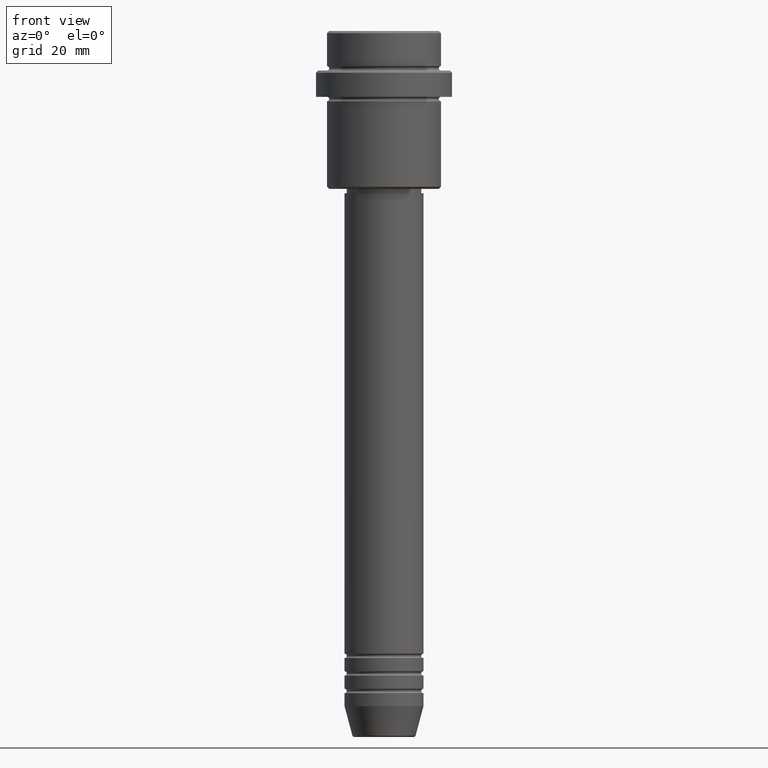
[diagram: clean part render]
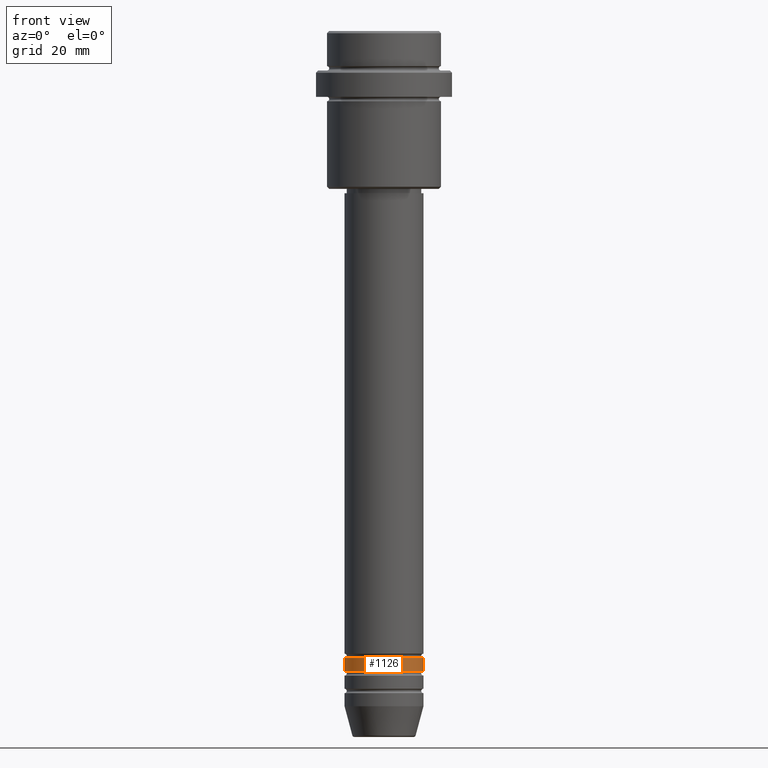
[diagram: same view with one face highlighted and labeled with its STEP entity id]
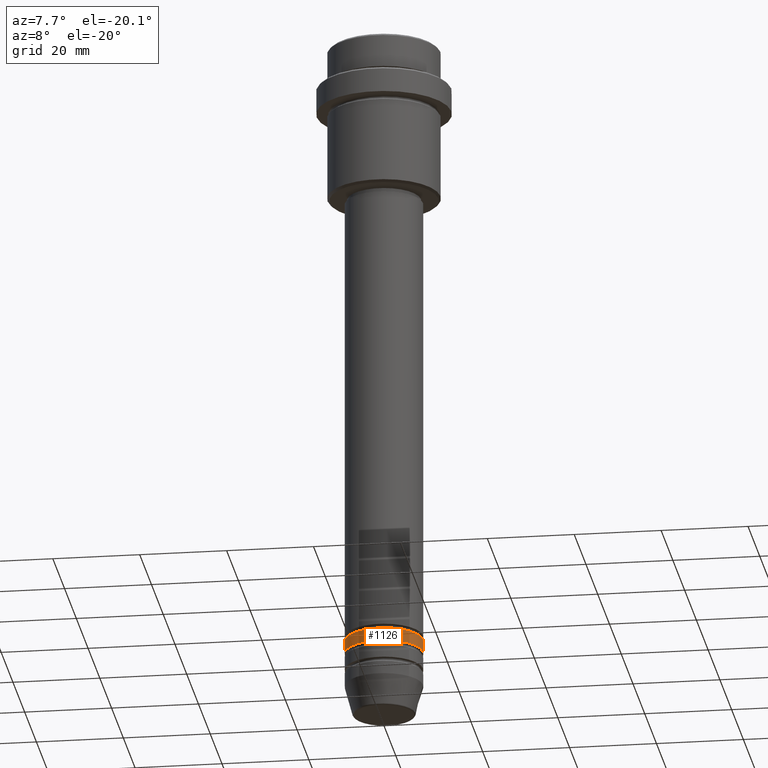
[diagram: same view with one face highlighted and labeled with its STEP entity id]
A machine part, front view. The second image highlights one B-rep face of the part: STEP entity #1126.
A second angle (auxiliary view) of the same face is appended — the face is thin or edge-on in the first view.
In plain terms, the highlighted cylindrical surface (partial cylindrical patch) has radius 9 mm, axis along (-0, -0, 1).
Its self-contained STEP definition (entity closure, byte-faithful):
#5 = ORIENTED_EDGE ( 'NONE', *, *, #810, .F. ) ;
#43 = ORIENTED_EDGE ( 'NONE', *, *, #1225, .F. ) ;
#175 = DIRECTION ( 'NONE',  ( -0.000000000000000000, -0.000000000000000000, 1.000000000000000000 ) ) ;
#256 = CARTESIAN_POINT ( 'NONE',  ( 0.000000000000000000, 0.000000000000000000, -142.9999999999999147 ) ) ;
#293 = CARTESIAN_POINT ( 'NONE',  ( 9.000000000000000000, 0.000000000000000000, -142.9999999999999147 ) ) ;
#381 = EDGE_CURVE ( 'NONE', #491, #1172, #801, .T. ) ;
#392 = EDGE_LOOP ( 'NONE', ( #5, #895, #1156, #43 ) ) ;
#403 = AXIS2_PLACEMENT_3D ( 'NONE', #1362, #175, #812 ) ;
#477 = DIRECTION ( 'NONE',  ( 1.000000000000000000, 0.000000000000000000, 0.000000000000000000 ) ) ;
#489 = DIRECTION ( 'NONE',  ( -0.000000000000000000, -0.000000000000000000, 1.000000000000000000 ) ) ;
#491 = VERTEX_POINT ( 'NONE', #1052 ) ;
#537 = AXIS2_PLACEMENT_3D ( 'NONE', #1314, #1096, #965 ) ;
#567 = DIRECTION ( 'NONE',  ( -0.000000000000000000, -0.000000000000000000, 1.000000000000000000 ) ) ;
#649 = AXIS2_PLACEMENT_3D ( 'NONE', #256, #893, #477 ) ;
#653 = FACE_OUTER_BOUND ( 'NONE', #392, .T. ) ;
#710 = CARTESIAN_POINT ( 'NONE',  ( -9.000000000000000000, 1.102182119232617714E-15, -142.9999999999999147 ) ) ;
#739 = VECTOR ( 'NONE', #567, 1000.000000000000000 ) ;
#801 = CIRCLE ( 'NONE', #403, 9.000000000000000000 ) ;
#810 = EDGE_CURVE ( 'NONE', #491, #998, #1114, .T. ) ;
#812 = DIRECTION ( 'NONE',  ( 1.000000000000000000, 0.000000000000000000, 0.000000000000000000 ) ) ;
#827 = LINE ( 'NONE', #1239, #1410 ) ;
#893 = DIRECTION ( 'NONE',  ( -0.000000000000000000, -0.000000000000000000, 1.000000000000000000 ) ) ;
#895 = ORIENTED_EDGE ( 'NONE', *, *, #381, .T. ) ;
#965 = DIRECTION ( 'NONE',  ( 1.000000000000000000, 0.000000000000000000, 0.000000000000000000 ) ) ;
#978 = CYLINDRICAL_SURFACE ( 'NONE', #537, 9.000000000000000000 ) ;
#998 = VERTEX_POINT ( 'NONE', #710 ) ;
#1052 = CARTESIAN_POINT ( 'NONE',  ( -9.000000000000000000, 1.102182119232617714E-15, -145.9999999999999147 ) ) ;
#1096 = DIRECTION ( 'NONE',  ( -0.000000000000000000, -0.000000000000000000, 1.000000000000000000 ) ) ;
#1114 = LINE ( 'NONE', #1124, #739 ) ;
#1124 = CARTESIAN_POINT ( 'NONE',  ( -9.000000000000000000, 1.102182119232617714E-15, 0.000000000000000000 ) ) ;
#1126 = ADVANCED_FACE ( 'NONE', ( #653 ), #978, .T. ) ;
#1156 = ORIENTED_EDGE ( 'NONE', *, *, #1413, .T. ) ;
#1172 = VERTEX_POINT ( 'NONE', #1308 ) ;
#1199 = CIRCLE ( 'NONE', #649, 9.000000000000000000 ) ;
#1225 = EDGE_CURVE ( 'NONE', #998, #1367, #1199, .T. ) ;
#1239 = CARTESIAN_POINT ( 'NONE',  ( 9.000000000000000000, 0.000000000000000000, 0.000000000000000000 ) ) ;
#1308 = CARTESIAN_POINT ( 'NONE',  ( 9.000000000000000000, 0.000000000000000000, -145.9999999999999147 ) ) ;
#1314 = CARTESIAN_POINT ( 'NONE',  ( 0.000000000000000000, 0.000000000000000000, 0.000000000000000000 ) ) ;
#1362 = CARTESIAN_POINT ( 'NONE',  ( 0.000000000000000000, 0.000000000000000000, -145.9999999999999147 ) ) ;
#1367 = VERTEX_POINT ( 'NONE', #293 ) ;
#1410 = VECTOR ( 'NONE', #489, 1000.000000000000000 ) ;
#1413 = EDGE_CURVE ( 'NONE', #1172, #1367, #827, .T. ) ;